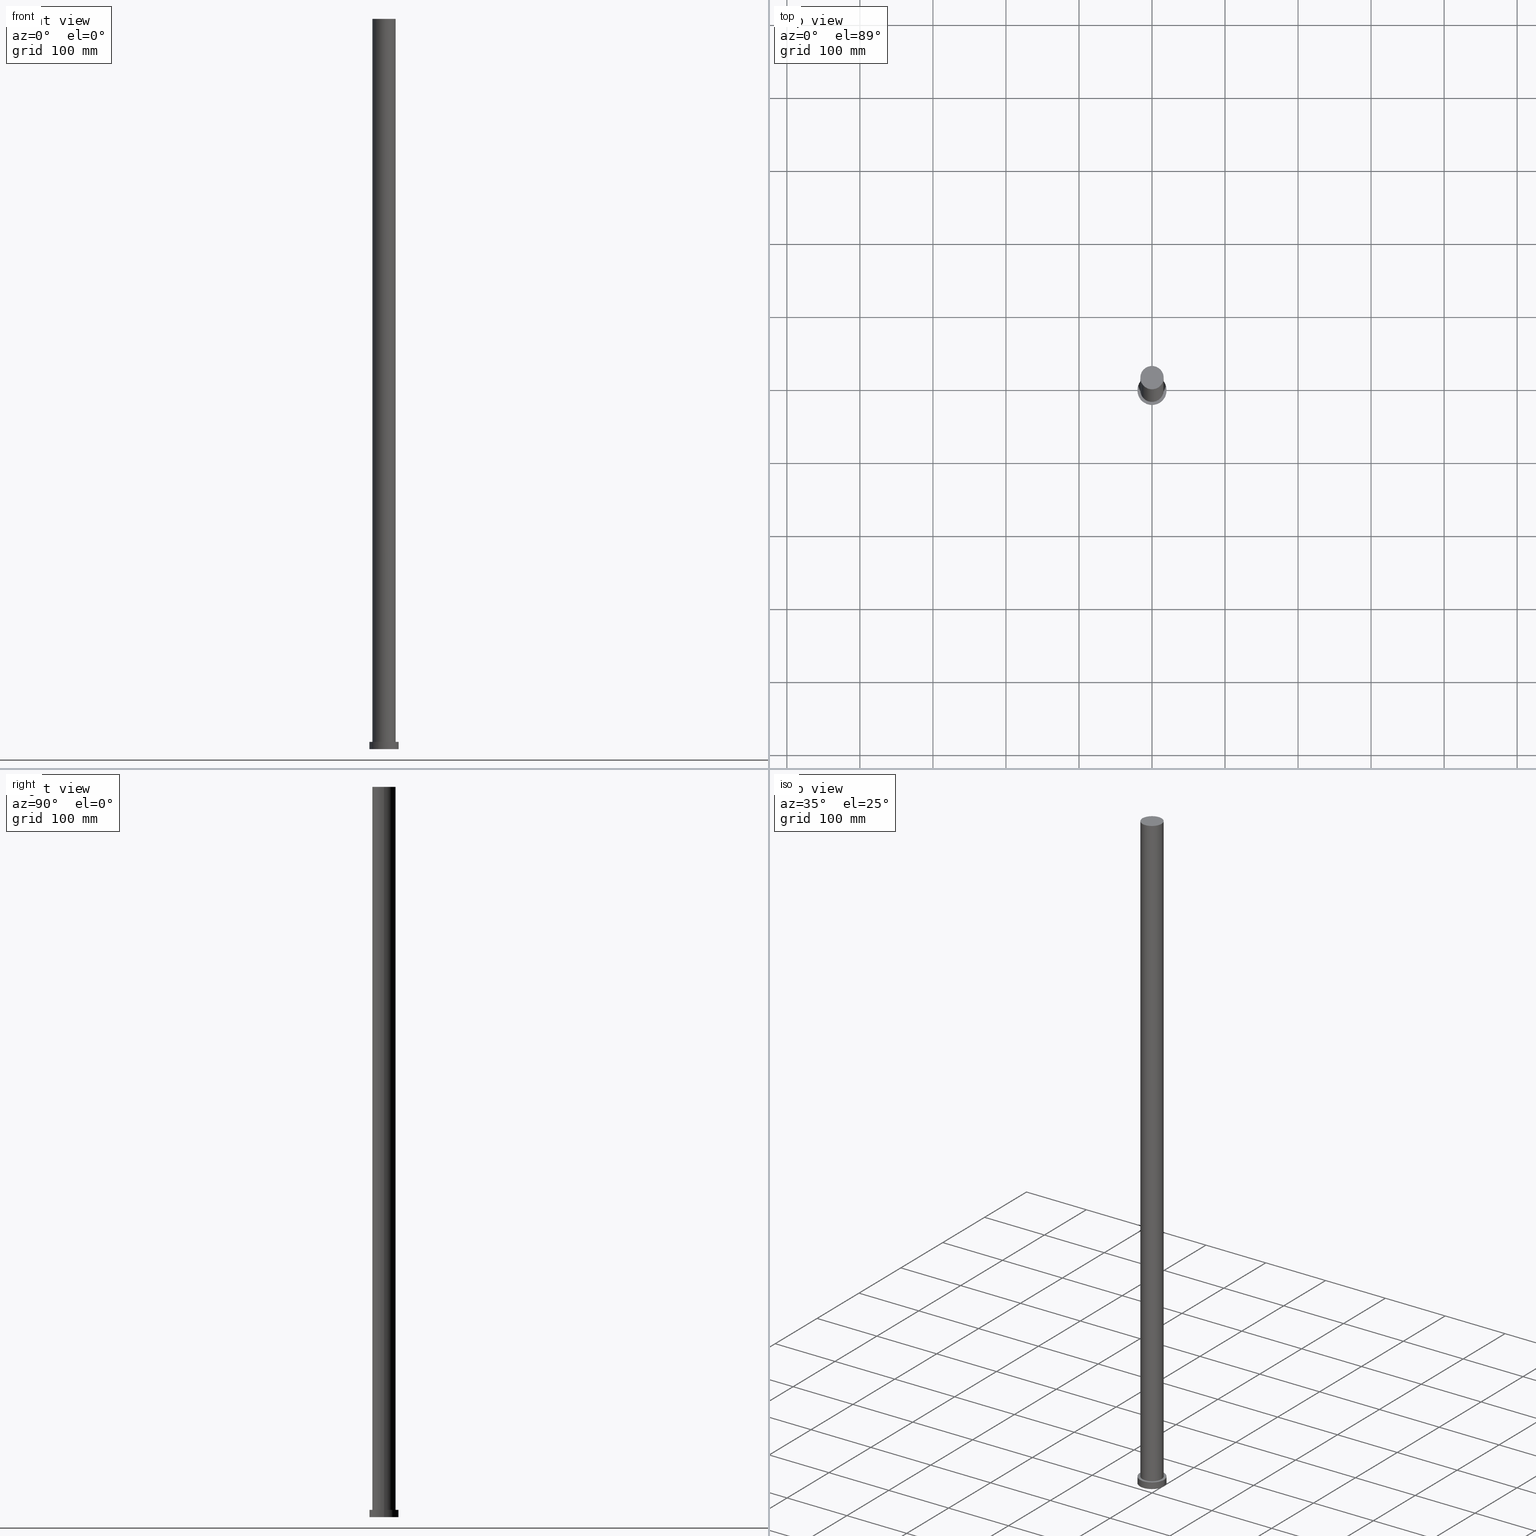
[diagram: canonical four-view strip — front | top / right | iso, engineering-drawing reading convention]
A machine part, canonical four-view strip (front | top / right | iso — engineering-drawing reading convention). The complete STEP part file that produces these views, byte-faithful:
ISO-10303-21;
HEADER;
FILE_DESCRIPTION (( 'STEP AP203' ),
    '1' );
FILE_NAME ('c684.STEP',
    '2023-02-13T07:28:27',
    ( '' ),
    ( '' ),
    'SwSTEP 2.0',
    'SolidWorks 2019',
    '' );
FILE_SCHEMA (( 'CONFIG_CONTROL_DESIGN' ));
ENDSEC;

DATA;
#1 = DIRECTION ( 'NONE',  ( 1.000000000000000000, 0.000000000000000000, 0.000000000000000000 ) ) ;
#2 = COORDINATED_UNIVERSAL_TIME_OFFSET ( 1, 0, .AHEAD. ) ;
#3 = CARTESIAN_POINT ( 'NONE',  ( 0.000000000000000000, 0.000000000000000000, 0.000000000000000000 ) ) ;
#4 = CARTESIAN_POINT ( 'NONE',  ( 0.000000000000000000, 0.000000000000000000, 10.00000000000000000 ) ) ;
#5 = PRODUCT_DEFINITION ( 'NEZN�M�', '', #222, #121 ) ;
#6 = DIRECTION ( 'NONE',  ( 1.000000000000000000, 0.000000000000000000, 0.000000000000000000 ) ) ;
#7 = CARTESIAN_POINT ( 'NONE',  ( -16.00000000000000000, 0.000000000000000000, 1000.000000000000000 ) ) ;
#8 = CARTESIAN_POINT ( 'NONE',  ( 0.000000000000000000, 0.000000000000000000, 10.00000000000000000 ) ) ;
#9 = VERTEX_POINT ( 'NONE', #192 ) ;
#10 =( NAMED_UNIT ( * ) SI_UNIT ( $, .STERADIAN. ) SOLID_ANGLE_UNIT ( ) );
#11 = ORIENTED_EDGE ( 'NONE', *, *, #181, .F. ) ;
#12 = CIRCLE ( 'NONE', #24, 16.00000000000000000 ) ;
#13 = ADVANCED_FACE ( 'NONE', ( #158 ), #35, .T. ) ;
#14 = ORIENTED_EDGE ( 'NONE', *, *, #36, .T. ) ;
#15 = DIRECTION ( 'NONE',  ( 1.000000000000000000, 0.000000000000000000, 0.000000000000000000 ) ) ;
#16 = CARTESIAN_POINT ( 'NONE',  ( 0.000000000000000000, 0.000000000000000000, 10.00000000000000000 ) ) ;
#17 = DIRECTION ( 'NONE',  ( 0.000000000000000000, 0.000000000000000000, 1.000000000000000000 ) ) ;
#18 = FACE_OUTER_BOUND ( 'NONE', #79, .T. ) ;
#19 = ADVANCED_FACE ( 'NONE', ( #18 ), #51, .T. ) ;
#20 = CIRCLE ( 'NONE', #102, 16.00000000000000000 ) ;
#21 = ADVANCED_FACE ( 'NONE', ( #98 ), #146, .T. ) ;
#22 = ORIENTED_EDGE ( 'NONE', *, *, #253, .F. ) ;
#23 = ORIENTED_EDGE ( 'NONE', *, *, #56, .T. ) ;
#24 = AXIS2_PLACEMENT_3D ( 'NONE', #149, #215, #162 ) ;
#25 = APPROVAL_STATUS ( 'not_yet_approved' ) ;
#26 = APPROVAL_STATUS ( 'not_yet_approved' ) ;
#27 = AXIS2_PLACEMENT_3D ( 'NONE', #38, #144, #75 ) ;
#28 = APPROVAL_DATE_TIME ( #154, #208 ) ;
#29 = DIRECTION ( 'NONE',  ( 0.000000000000000000, 0.000000000000000000, 1.000000000000000000 ) ) ;
#30 = CARTESIAN_POINT ( 'NONE',  ( -20.00000000000000000, 0.000000000000000000, 0.000000000000000000 ) ) ;
#31 = VERTEX_POINT ( 'NONE', #123 ) ;
#32 = CARTESIAN_POINT ( 'NONE',  ( 0.000000000000000000, 0.000000000000000000, 1000.000000000000000 ) ) ;
#33 = CIRCLE ( 'NONE', #168, 20.00000000000000000 ) ;
#34 =( GEOMETRIC_REPRESENTATION_CONTEXT ( 3 ) GLOBAL_UNCERTAINTY_ASSIGNED_CONTEXT ( ( #198 ) ) GLOBAL_UNIT_ASSIGNED_CONTEXT ( ( #227, #210, #10 ) ) REPRESENTATION_CONTEXT ( 'NONE', 'WORKASPACE' ) );
#35 = CYLINDRICAL_SURFACE ( 'NONE', #129, 16.00000000000000000 ) ;
#36 = EDGE_CURVE ( 'NONE', #58, #53, #74, .T. ) ;
#37 = ORIENTED_EDGE ( 'NONE', *, *, #81, .F. ) ;
#38 = CARTESIAN_POINT ( 'NONE',  ( 0.000000000000000000, 0.000000000000000000, 1000.000000000000000 ) ) ;
#39 = ORIENTED_EDGE ( 'NONE', *, *, #81, .T. ) ;
#40 = AXIS2_PLACEMENT_3D ( 'NONE', #197, #120, #195 ) ;
#41 = DATE_AND_TIME ( #106, #180 ) ;
#42 = CC_DESIGN_PERSON_AND_ORGANIZATION_ASSIGNMENT ( #217, #65, ( #131 ) ) ;
#43 = COORDINATED_UNIVERSAL_TIME_OFFSET ( 1, 0, .AHEAD. ) ;
#44 = VECTOR ( 'NONE', #188, 1000.000000000000000 ) ;
#45 = APPROVAL_DATE_TIME ( #235, #169 ) ;
#46 = APPROVAL_PERSON_ORGANIZATION ( #85, #143, #205 ) ;
#47 = CARTESIAN_POINT ( 'NONE',  ( 0.000000000000000000, 0.000000000000000000, 10.00000000000000000 ) ) ;
#48 = DIRECTION ( 'NONE',  ( 1.000000000000000000, 0.000000000000000000, 0.000000000000000000 ) ) ;
#49 = AXIS2_PLACEMENT_3D ( 'NONE', #47, #137, #88 ) ;
#50 = DIRECTION ( 'NONE',  ( -1.000000000000000000, 0.000000000000000000, 0.000000000000000000 ) ) ;
#51 = CYLINDRICAL_SURFACE ( 'NONE', #145, 20.00000000000000000 ) ;
#52 = EDGE_LOOP ( 'NONE', ( #183, #124, #164, #73 ) ) ;
#53 = VERTEX_POINT ( 'NONE', #240 ) ;
#54 = ORIENTED_EDGE ( 'NONE', *, *, #125, .F. ) ;
#55 = DIRECTION ( 'NONE',  ( -0.000000000000000000, -0.000000000000000000, -1.000000000000000000 ) ) ;
#56 = EDGE_CURVE ( 'NONE', #9, #58, #155, .T. ) ;
#57 = ADVANCED_FACE ( 'NONE', ( #237, #141 ), #117, .T. ) ;
#58 = VERTEX_POINT ( 'NONE', #59 ) ;
#59 = CARTESIAN_POINT ( 'NONE',  ( -16.00000000000000000, 0.000000000000000000, 10.00000000000000000 ) ) ;
#60 = CC_DESIGN_PERSON_AND_ORGANIZATION_ASSIGNMENT ( #87, #127, ( #222 ) ) ;
#61 = DIRECTION ( 'NONE',  ( 0.000000000000000000, 0.000000000000000000, 1.000000000000000000 ) ) ;
#62 = PRODUCT_RELATED_PRODUCT_CATEGORY ( 'detail', '', ( #176 ) ) ;
#63 = EDGE_CURVE ( 'NONE', #9, #76, #12, .T. ) ;
#64 = APPLICATION_PROTOCOL_DEFINITION ( 'international standard', 'config_control_design', 1994, #224 ) ;
#65 = PERSON_AND_ORGANIZATION_ROLE ( 'classification_officer' ) ;
#66 = APPROVAL_STATUS ( 'not_yet_approved' ) ;
#67 = AXIS2_PLACEMENT_3D ( 'NONE', #4, #175, #15 ) ;
#68 = ADVANCED_FACE ( 'NONE', ( #166 ), #122, .F. ) ;
#69 = SECURITY_CLASSIFICATION_LEVEL ( 'unclassified' ) ;
#70 = DIRECTION ( 'NONE',  ( -0.000000000000000000, -0.000000000000000000, -1.000000000000000000 ) ) ;
#71 = DIRECTION ( 'NONE',  ( 0.000000000000000000, 0.000000000000000000, 1.000000000000000000 ) ) ;
#72 = FACE_OUTER_BOUND ( 'NONE', #99, .T. ) ;
#73 = ORIENTED_EDGE ( 'NONE', *, *, #125, .T. ) ;
#74 = CIRCLE ( 'NONE', #40, 16.00000000000000000 ) ;
#75 = DIRECTION ( 'NONE',  ( 1.000000000000000000, 0.000000000000000000, -0.000000000000000000 ) ) ;
#76 = VERTEX_POINT ( 'NONE', #94 ) ;
#77 = CIRCLE ( 'NONE', #173, 20.00000000000000000 ) ;
#78 = AXIS2_PLACEMENT_3D ( 'NONE', #32, #174, #226 ) ;
#79 = EDGE_LOOP ( 'NONE', ( #11, #190, #209, #22 ) ) ;
#80 = ORGANIZATION ( 'NEUR�EN�', 'NEUR�EN�', '' ) ;
#81 = EDGE_CURVE ( 'NONE', #53, #58, #20, .T. ) ;
#82 = ORIENTED_EDGE ( 'NONE', *, *, #36, .F. ) ;
#83 = PERSON_AND_ORGANIZATION_ROLE ( 'creator' ) ;
#84 = CALENDAR_DATE ( 2023, 13, 2 ) ;
#85 = PERSON_AND_ORGANIZATION ( #153, #80 ) ;
#86 = CIRCLE ( 'NONE', #78, 16.00000000000000000 ) ;
#87 = PERSON_AND_ORGANIZATION ( #153, #80 ) ;
#88 = DIRECTION ( 'NONE',  ( -1.000000000000000000, 0.000000000000000000, 0.000000000000000000 ) ) ;
#89 = DIRECTION ( 'NONE',  ( 1.000000000000000000, 0.000000000000000000, 0.000000000000000000 ) ) ;
#90 = DIRECTION ( 'NONE',  ( -0.000000000000000000, -0.000000000000000000, -1.000000000000000000 ) ) ;
#91 = CC_DESIGN_PERSON_AND_ORGANIZATION_ASSIGNMENT ( #241, #152, ( #222 ) ) ;
#92 = FACE_OUTER_BOUND ( 'NONE', #52, .T. ) ;
#93 = ORIENTED_EDGE ( 'NONE', *, *, #203, .T. ) ;
#94 = CARTESIAN_POINT ( 'NONE',  ( 16.00000000000000000, 1.959434878635765131E-15, 1000.000000000000000 ) ) ;
#95 = DIRECTION ( 'NONE',  ( 1.000000000000000000, 0.000000000000000000, -0.000000000000000000 ) ) ;
#96 = ADVANCED_BREP_SHAPE_REPRESENTATION ( 'c684', ( #218, #101 ), #34 ) ;
#97 = LOCAL_TIME ( 8, 28, 27.00000000000000000, #186 ) ;
#98 = FACE_OUTER_BOUND ( 'NONE', #148, .T. ) ;
#99 = EDGE_LOOP ( 'NONE', ( #213, #254, #23, #14 ) ) ;
#100 = VERTEX_POINT ( 'NONE', #134 ) ;
#101 = AXIS2_PLACEMENT_3D ( 'NONE', #3, #61, #1 ) ;
#102 = AXIS2_PLACEMENT_3D ( 'NONE', #8, #71, #6 ) ;
#103 = APPROVAL_DATE_TIME ( #170, #143 ) ;
#104 = DATE_TIME_ROLE ( 'creation_date' ) ;
#105 = LOCAL_TIME ( 8, 28, 27.00000000000000000, #2 ) ;
#106 = CALENDAR_DATE ( 2023, 13, 2 ) ;
#107 = DIRECTION ( 'NONE',  ( 0.000000000000000000, 0.000000000000000000, 1.000000000000000000 ) ) ;
#108 = CARTESIAN_POINT ( 'NONE',  ( 0.000000000000000000, 0.000000000000000000, 10.00000000000000000 ) ) ;
#109 = EDGE_CURVE ( 'NONE', #199, #113, #33, .T. ) ;
#110 = CARTESIAN_POINT ( 'NONE',  ( -20.00000000000000000, 0.000000000000000000, 10.00000000000000000 ) ) ;
#111 = PRODUCT_DEFINITION_SHAPE ( 'NONE', 'NONE',  #5 ) ;
#112 = LINE ( 'NONE', #157, #200 ) ;
#113 = VERTEX_POINT ( 'NONE', #30 ) ;
#114 = DIRECTION ( 'NONE',  ( -0.000000000000000000, -0.000000000000000000, -1.000000000000000000 ) ) ;
#115 = CIRCLE ( 'NONE', #67, 20.00000000000000000 ) ;
#116 = CC_DESIGN_APPROVAL ( #208, ( #222 ) ) ;
#117 = PLANE ( 'NONE',  #118 ) ;
#118 = AXIS2_PLACEMENT_3D ( 'NONE', #193, #17, #95 ) ;
#119 = EDGE_CURVE ( 'NONE', #76, #53, #177, .T. ) ;
#120 = DIRECTION ( 'NONE',  ( 0.000000000000000000, 0.000000000000000000, 1.000000000000000000 ) ) ;
#121 = DESIGN_CONTEXT ( 'detailed design', #224, 'design' ) ;
#122 = PLANE ( 'NONE',  #214 ) ;
#123 = CARTESIAN_POINT ( 'NONE',  ( 20.00000000000000000, 2.449293598294706513E-15, 10.00000000000000000 ) ) ;
#124 = ORIENTED_EDGE ( 'NONE', *, *, #216, .F. ) ;
#125 = EDGE_CURVE ( 'NONE', #113, #199, #194, .T. ) ;
#126 = ORIENTED_EDGE ( 'NONE', *, *, #216, .T. ) ;
#127 = PERSON_AND_ORGANIZATION_ROLE ( 'creator' ) ;
#128 = PERSON_AND_ORGANIZATION ( #153, #80 ) ;
#129 = AXIS2_PLACEMENT_3D ( 'NONE', #228, #55, #233 ) ;
#130 = SHAPE_DEFINITION_REPRESENTATION ( #111, #96 ) ;
#131 = SECURITY_CLASSIFICATION ( '', '', #69 ) ;
#132 = CALENDAR_DATE ( 2023, 13, 2 ) ;
#133 = ADVANCED_FACE ( 'NONE', ( #92 ), #245, .T. ) ;
#134 = CARTESIAN_POINT ( 'NONE',  ( -20.00000000000000000, 0.000000000000000000, 10.00000000000000000 ) ) ;
#135 = VECTOR ( 'NONE', #90, 1000.000000000000000 ) ;
#136 = CARTESIAN_POINT ( 'NONE',  ( 16.00000000000000000, 1.959434878635765131E-15, 1000.000000000000000 ) ) ;
#137 = DIRECTION ( 'NONE',  ( -0.000000000000000000, -0.000000000000000000, -1.000000000000000000 ) ) ;
#138 = LOCAL_TIME ( 8, 28, 27.00000000000000000, #255 ) ;
#139 = ORIENTED_EDGE ( 'NONE', *, *, #181, .T. ) ;
#140 = APPLICATION_CONTEXT ( 'configuration controlled 3d designs of mechanical parts and assemblies' ) ;
#141 = FACE_OUTER_BOUND ( 'NONE', #232, .T. ) ;
#142 = CARTESIAN_POINT ( 'NONE',  ( 0.000000000000000000, 0.000000000000000000, 0.000000000000000000 ) ) ;
#143 = APPROVAL ( #25, 'NEUR�EN�' ) ;
#144 = DIRECTION ( 'NONE',  ( 0.000000000000000000, 0.000000000000000000, 1.000000000000000000 ) ) ;
#145 = AXIS2_PLACEMENT_3D ( 'NONE', #16, #182, #161 ) ;
#146 = PLANE ( 'NONE',  #27 ) ;
#147 = APPROVAL_PERSON_ORGANIZATION ( #167, #208, #236 ) ;
#148 = EDGE_LOOP ( 'NONE', ( #229, #93 ) ) ;
#149 = CARTESIAN_POINT ( 'NONE',  ( 0.000000000000000000, 0.000000000000000000, 1000.000000000000000 ) ) ;
#150 = CLOSED_SHELL ( 'NONE', ( #13, #19, #133, #57, #68, #225, #21 ) ) ;
#151 = APPLICATION_PROTOCOL_DEFINITION ( 'international standard', 'config_control_design', 1994, #140 ) ;
#152 = PERSON_AND_ORGANIZATION_ROLE ( 'design_supplier' ) ;
#153 = PERSON ( 'NEUR�EN�', 'NEUR�EN�', 'NEUR�EN�', ('NEUR�EN�'), ('NEUR�EN�'), ('NEUR�EN�') ) ;
#154 = DATE_AND_TIME ( #84, #105 ) ;
#155 = LINE ( 'NONE', #7, #135 ) ;
#156 = PERSON_AND_ORGANIZATION ( #153, #80 ) ;
#157 = CARTESIAN_POINT ( 'NONE',  ( 20.00000000000000000, 2.449293598294706513E-15, 10.00000000000000000 ) ) ;
#158 = FACE_OUTER_BOUND ( 'NONE', #248, .T. ) ;
#159 = CARTESIAN_POINT ( 'NONE',  ( 0.000000000000000000, 0.000000000000000000, 0.000000000000000000 ) ) ;
#160 = CC_DESIGN_DATE_AND_TIME_ASSIGNMENT ( #219, #104, ( #5 ) ) ;
#161 = DIRECTION ( 'NONE',  ( -1.000000000000000000, 0.000000000000000000, 0.000000000000000000 ) ) ;
#162 = DIRECTION ( 'NONE',  ( 1.000000000000000000, 0.000000000000000000, 0.000000000000000000 ) ) ;
#163 = EDGE_LOOP ( 'NONE', ( #82, #37 ) ) ;
#164 = ORIENTED_EDGE ( 'NONE', *, *, #253, .T. ) ;
#165 = ORIENTED_EDGE ( 'NONE', *, *, #203, .F. ) ;
#166 = FACE_OUTER_BOUND ( 'NONE', #251, .T. ) ;
#167 = PERSON_AND_ORGANIZATION ( #153, #80 ) ;
#168 = AXIS2_PLACEMENT_3D ( 'NONE', #230, #107, #48 ) ;
#169 = APPROVAL ( #26, 'NEUR�EN�' ) ;
#170 = DATE_AND_TIME ( #238, #204 ) ;
#171 = APPROVAL_ROLE ( '' ) ;
#172 = COORDINATED_UNIVERSAL_TIME_OFFSET ( 1, 0, .AHEAD. ) ;
#173 = AXIS2_PLACEMENT_3D ( 'NONE', #108, #29, #179 ) ;
#174 = DIRECTION ( 'NONE',  ( 0.000000000000000000, 0.000000000000000000, 1.000000000000000000 ) ) ;
#175 = DIRECTION ( 'NONE',  ( 0.000000000000000000, 0.000000000000000000, 1.000000000000000000 ) ) ;
#176 = PRODUCT ( 'c684', 'c684', '', ( #187 ) ) ;
#177 = LINE ( 'NONE', #136, #44 ) ;
#178 = ORIENTED_EDGE ( 'NONE', *, *, #109, .F. ) ;
#179 = DIRECTION ( 'NONE',  ( 1.000000000000000000, 0.000000000000000000, 0.000000000000000000 ) ) ;
#180 = LOCAL_TIME ( 8, 28, 27.00000000000000000, #43 ) ;
#181 = EDGE_CURVE ( 'NONE', #31, #100, #77, .T. ) ;
#182 = DIRECTION ( 'NONE',  ( -0.000000000000000000, -0.000000000000000000, -1.000000000000000000 ) ) ;
#183 = ORIENTED_EDGE ( 'NONE', *, *, #184, .F. ) ;
#184 = EDGE_CURVE ( 'NONE', #31, #199, #112, .T. ) ;
#185 = PERSON_AND_ORGANIZATION ( #153, #80 ) ;
#186 = COORDINATED_UNIVERSAL_TIME_OFFSET ( 1, 0, .AHEAD. ) ;
#187 = MECHANICAL_CONTEXT ( 'NONE', #140, 'mechanical' ) ;
#188 = DIRECTION ( 'NONE',  ( -0.000000000000000000, -0.000000000000000000, -1.000000000000000000 ) ) ;
#189 = CARTESIAN_POINT ( 'NONE',  ( 20.00000000000000000, 2.449293598294706513E-15, 0.000000000000000000 ) ) ;
#190 = ORIENTED_EDGE ( 'NONE', *, *, #184, .T. ) ;
#191 = DIRECTION ( 'NONE',  ( 1.000000000000000000, 0.000000000000000000, -0.000000000000000000 ) ) ;
#192 = CARTESIAN_POINT ( 'NONE',  ( -16.00000000000000000, 0.000000000000000000, 1000.000000000000000 ) ) ;
#193 = CARTESIAN_POINT ( 'NONE',  ( 0.000000000000000000, 0.000000000000000000, 10.00000000000000000 ) ) ;
#194 = CIRCLE ( 'NONE', #234, 20.00000000000000000 ) ;
#195 = DIRECTION ( 'NONE',  ( 1.000000000000000000, 0.000000000000000000, 0.000000000000000000 ) ) ;
#196 = CC_DESIGN_SECURITY_CLASSIFICATION ( #131, ( #222 ) ) ;
#197 = CARTESIAN_POINT ( 'NONE',  ( 0.000000000000000000, 0.000000000000000000, 10.00000000000000000 ) ) ;
#198 = UNCERTAINTY_MEASURE_WITH_UNIT (LENGTH_MEASURE( 1.000000000000000082E-05 ), #227, 'distance_accuracy_value', 'NONE');
#199 = VERTEX_POINT ( 'NONE', #189 ) ;
#200 = VECTOR ( 'NONE', #114, 1000.000000000000000 ) ;
#201 = CC_DESIGN_PERSON_AND_ORGANIZATION_ASSIGNMENT ( #185, #83, ( #5 ) ) ;
#202 = PERSON_AND_ORGANIZATION_ROLE ( 'design_owner' ) ;
#203 = EDGE_CURVE ( 'NONE', #76, #9, #86, .T. ) ;
#204 = LOCAL_TIME ( 8, 28, 27.00000000000000000, #172 ) ;
#205 = APPROVAL_ROLE ( '' ) ;
#206 = DIRECTION ( 'NONE',  ( 0.000000000000000000, 0.000000000000000000, 1.000000000000000000 ) ) ;
#207 = DIRECTION ( 'NONE',  ( -0.000000000000000000, -0.000000000000000000, -1.000000000000000000 ) ) ;
#208 = APPROVAL ( #66, 'NEUR�EN�' ) ;
#209 = ORIENTED_EDGE ( 'NONE', *, *, #109, .T. ) ;
#210 =( NAMED_UNIT ( * ) PLANE_ANGLE_UNIT ( ) SI_UNIT ( $, .RADIAN. ) );
#211 = CC_DESIGN_APPROVAL ( #143, ( #5 ) ) ;
#212 = ORIENTED_EDGE ( 'NONE', *, *, #119, .T. ) ;
#213 = ORIENTED_EDGE ( 'NONE', *, *, #119, .F. ) ;
#214 = AXIS2_PLACEMENT_3D ( 'NONE', #142, #223, #191 ) ;
#215 = DIRECTION ( 'NONE',  ( 0.000000000000000000, 0.000000000000000000, 1.000000000000000000 ) ) ;
#216 = EDGE_CURVE ( 'NONE', #100, #31, #115, .T. ) ;
#217 = PERSON_AND_ORGANIZATION ( #153, #80 ) ;
#218 = MANIFOLD_SOLID_BREP ( 'P�idat vysunut�m3', #150 ) ;
#219 = DATE_AND_TIME ( #132, #138 ) ;
#220 = DATE_TIME_ROLE ( 'classification_date' ) ;
#221 = AXIS2_PLACEMENT_3D ( 'NONE', #242, #207, #50 ) ;
#222 = PRODUCT_DEFINITION_FORMATION_WITH_SPECIFIED_SOURCE ( 'LIBOVOLN�', '', #176, .NOT_KNOWN. ) ;
#223 = DIRECTION ( 'NONE',  ( 0.000000000000000000, 0.000000000000000000, 1.000000000000000000 ) ) ;
#224 = APPLICATION_CONTEXT ( 'configuration controlled 3d designs of mechanical parts and assemblies' ) ;
#225 = ADVANCED_FACE ( 'NONE', ( #72 ), #244, .T. ) ;
#226 = DIRECTION ( 'NONE',  ( 1.000000000000000000, 0.000000000000000000, 0.000000000000000000 ) ) ;
#227 =( LENGTH_UNIT ( ) NAMED_UNIT ( * ) SI_UNIT ( .MILLI., .METRE. ) );
#228 = CARTESIAN_POINT ( 'NONE',  ( 0.000000000000000000, 0.000000000000000000, 1000.000000000000000 ) ) ;
#229 = ORIENTED_EDGE ( 'NONE', *, *, #63, .T. ) ;
#230 = CARTESIAN_POINT ( 'NONE',  ( 0.000000000000000000, 0.000000000000000000, 0.000000000000000000 ) ) ;
#231 = CC_DESIGN_APPROVAL ( #169, ( #131 ) ) ;
#232 = EDGE_LOOP ( 'NONE', ( #126, #139 ) ) ;
#233 = DIRECTION ( 'NONE',  ( -1.000000000000000000, 0.000000000000000000, 0.000000000000000000 ) ) ;
#234 = AXIS2_PLACEMENT_3D ( 'NONE', #159, #206, #89 ) ;
#235 = DATE_AND_TIME ( #239, #97 ) ;
#236 = APPROVAL_ROLE ( '' ) ;
#237 = FACE_BOUND ( 'NONE', #163, .T. ) ;
#238 = CALENDAR_DATE ( 2023, 13, 2 ) ;
#239 = CALENDAR_DATE ( 2023, 13, 2 ) ;
#240 = CARTESIAN_POINT ( 'NONE',  ( 16.00000000000000000, 1.959434878635765131E-15, 10.00000000000000000 ) ) ;
#241 = PERSON_AND_ORGANIZATION ( #153, #80 ) ;
#242 = CARTESIAN_POINT ( 'NONE',  ( 0.000000000000000000, 0.000000000000000000, 1000.000000000000000 ) ) ;
#243 = CC_DESIGN_PERSON_AND_ORGANIZATION_ASSIGNMENT ( #128, #202, ( #176 ) ) ;
#244 = CYLINDRICAL_SURFACE ( 'NONE', #221, 16.00000000000000000 ) ;
#245 = CYLINDRICAL_SURFACE ( 'NONE', #49, 20.00000000000000000 ) ;
#246 = ORIENTED_EDGE ( 'NONE', *, *, #56, .F. ) ;
#247 = LINE ( 'NONE', #110, #250 ) ;
#248 = EDGE_LOOP ( 'NONE', ( #165, #212, #39, #246 ) ) ;
#249 = CC_DESIGN_DATE_AND_TIME_ASSIGNMENT ( #41, #220, ( #131 ) ) ;
#250 = VECTOR ( 'NONE', #70, 1000.000000000000000 ) ;
#251 = EDGE_LOOP ( 'NONE', ( #54, #178 ) ) ;
#252 = APPROVAL_PERSON_ORGANIZATION ( #156, #169, #171 ) ;
#253 = EDGE_CURVE ( 'NONE', #100, #113, #247, .T. ) ;
#254 = ORIENTED_EDGE ( 'NONE', *, *, #63, .F. ) ;
#255 = COORDINATED_UNIVERSAL_TIME_OFFSET ( 1, 0, .AHEAD. ) ;
ENDSEC;
END-ISO-10303-21;
